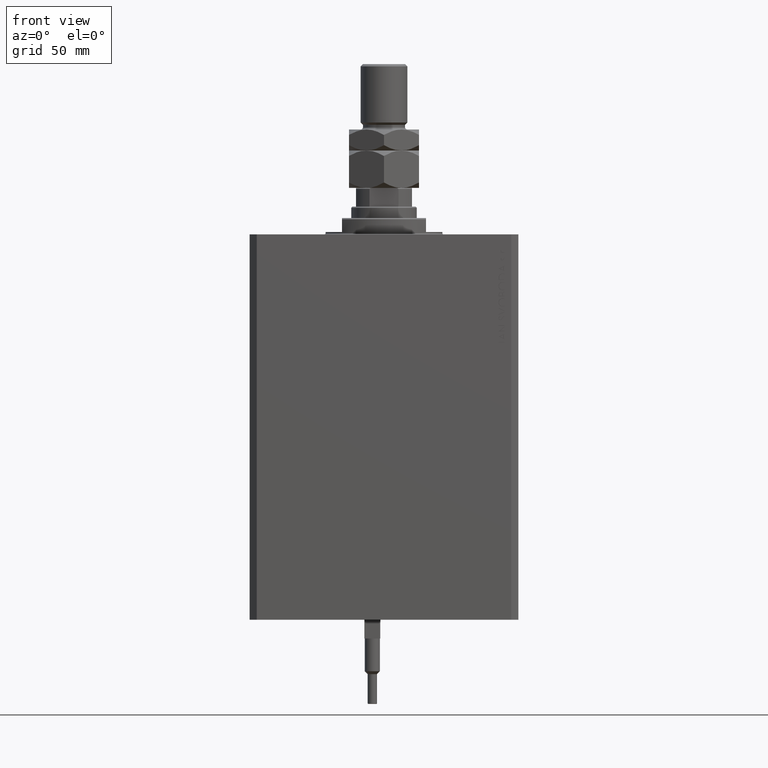
[diagram: clean part render]
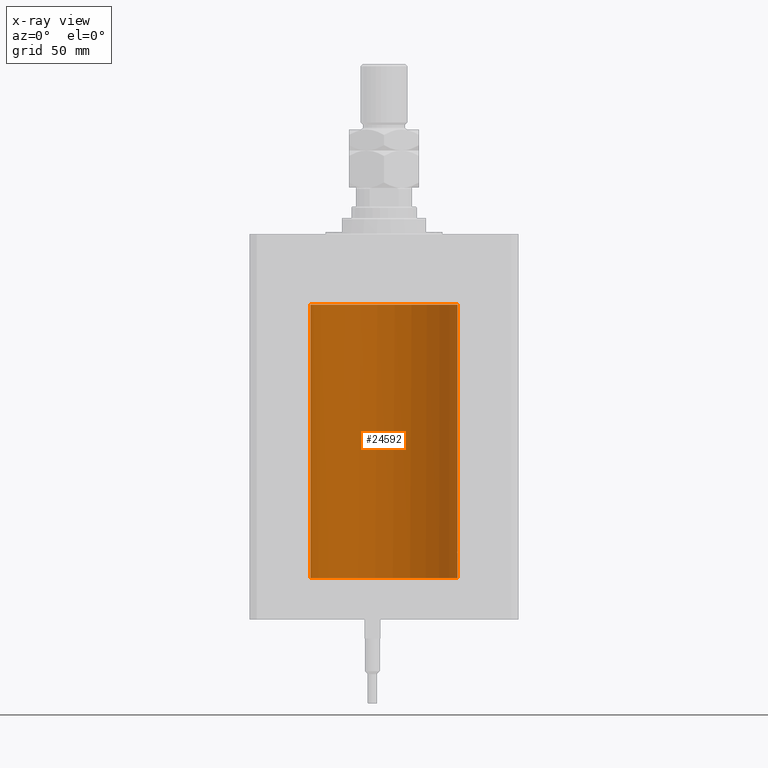
[diagram: x-ray — body ghosted, one internal face saturated and labeled with its STEP entity id]
A machine part, front view, then the same camera in x-ray: the body is ghosted and one INTERNAL B-rep face — a face not visible from any outside direction — is saturated and labeled: STEP entity #24592.
In plain terms, the highlighted cylindrical surface (partial cylindrical patch) has radius 31.5 mm, axis along (0, 0, 1).
Its self-contained STEP definition (entity closure, byte-faithful):
#439 = LINE ( 'NONE', #27268, #19842 ) ;
#714 = CARTESIAN_POINT ( 'NONE',  ( 31.45226167581968113, 1.735077252816690230, -134.9967648169954657 ) ) ;
#1642 = EDGE_CURVE ( 'NONE', #49293, #42877, #36315, .T. ) ;
#2627 = CARTESIAN_POINT ( 'NONE',  ( 31.47656968928225751, 1.219587704424718533, -137.5905023401450933 ) ) ;
#2875 = CARTESIAN_POINT ( 'NONE',  ( 31.49600115550921231, 0.5179422407981826293, -137.9361644646872378 ) ) ;
#3843 = DIRECTION ( 'NONE',  ( 0.000000000000000000, 0.000000000000000000, 1.000000000000000000 ) ) ;
#4048 = ORIENTED_EDGE ( 'NONE', *, *, #1642, .F. ) ;
#5146 = VERTEX_POINT ( 'NONE', #20584 ) ;
#6051 = DIRECTION ( 'NONE',  ( -0.000000000000000000, -0.000000000000000000, 1.000000000000000000 ) ) ;
#6418 = AXIS2_PLACEMENT_3D ( 'NONE', #23567, #20283, #46393 ) ;
#7515 = CARTESIAN_POINT ( 'NONE',  ( 31.45991621267056004, 1.590260824275577356, -134.7801457396745093 ) ) ;
#7879 = CARTESIAN_POINT ( 'NONE',  ( -31.48136522371477852, 1.092934591159441693, -30.68296962504550507 ) ) ;
#8247 = CARTESIAN_POINT ( 'NONE',  ( 31.44869941755756315, 1.797728078038221655, -135.1138051504310056 ) ) ;
#9733 = EDGE_CURVE ( 'NONE', #15061, #5146, #27938, .T. ) ;
#11143 = CARTESIAN_POINT ( 'NONE',  ( -31.49006417643538569, 0.8041893641746242771, -30.83852447520479956 ) ) ;
#11446 = AXIS2_PLACEMENT_3D ( 'NONE', #26159, #3843, #34677 ) ;
#11634 = CARTESIAN_POINT ( 'NONE',  ( -31.47622270810187928, 1.229689797707025578, -30.58584657277510388 ) ) ;
#11710 = CARTESIAN_POINT ( 'NONE',  ( -31.50000000000000000, 3.857637417314162689E-15, -147.1000000000000227 ) ) ;
#12167 = EDGE_CURVE ( 'NONE', #26007, #32769, #37341, .T. ) ;
#12247 = CARTESIAN_POINT ( 'NONE',  ( 31.47243113015943550, 1.320912165297383201, -134.4924797776056948 ) ) ;
#14298 = ORIENTED_EDGE ( 'NONE', *, *, #38606, .T. ) ;
#14625 = LINE ( 'NONE', #18627, #35944 ) ;
#14657 = CARTESIAN_POINT ( 'NONE',  ( 31.45161214644910075, 1.748160858796773631, -137.0059024499661291 ) ) ;
#14917 = CARTESIAN_POINT ( 'NONE',  ( 31.43644381923627051, 2.000000000000389910, -136.0000000000000000 ) ) ;
#15031 = CARTESIAN_POINT ( 'NONE',  ( 31.44280827872263018, 1.897980201673368450, -135.3559202626804563 ) ) ;
#15061 = VERTEX_POINT ( 'NONE', #27577 ) ;
#16524 = B_SPLINE_CURVE_WITH_KNOTS ( 'NONE', 3,
 ( #27049, #38839, #49406, #41873, #15031, #8247, #714, #7515, #46368, #12247, #30330, #26806, #27537, #38348, #19522, #34834, #38094, #22806 ),
 .UNSPECIFIED., .F., .F.,
 ( 4, 2, 2, 2, 2, 2, 2, 2, 4 ),
 ( 0.003127956870251400769, 0.003518772842989208692, 0.003909588815727015748, 0.004300404788464823672, 0.004691220761202631595, 0.005082036733940439518, 0.005472852706678247442, 0.005863668679416054498, 0.006254484652153862421 ),
 .UNSPECIFIED. ) ;
#18627 = CARTESIAN_POINT ( 'NONE',  ( 31.50000000000000000, 0.000000000000000000, -147.1000000000000227 ) ) ;
#19522 = CARTESIAN_POINT ( 'NONE',  ( 31.49597888575898708, 0.5193621964009151881, -134.0641961002934295 ) ) ;
#19842 = VECTOR ( 'NONE', #47075, 1000.000000000000000 ) ;
#20283 = DIRECTION ( 'NONE',  ( 0.000000000000000000, 0.000000000000000000, 1.000000000000000000 ) ) ;
#20584 = CARTESIAN_POINT ( 'NONE',  ( -31.50000000000000000, 3.857542963677526976E-15, -30.99999999999999645 ) ) ;
#21703 = CARTESIAN_POINT ( 'NONE',  ( 31.45992223434330981, 1.599182806012582558, -137.2291100714819265 ) ) ;
#21742 = CARTESIAN_POINT ( 'NONE',  ( 31.50000000000000000, -5.244345426788806144E-15, -138.0000000000000000 ) ) ;
#21947 = CARTESIAN_POINT ( 'NONE',  ( 31.43989559156923264, 1.947546710638696110, -136.5243738522823378 ) ) ;
#22806 = CARTESIAN_POINT ( 'NONE',  ( 31.50000000000000000, -8.369814204394935255E-24, -134.0000000000000000 ) ) ;
#23174 = CARTESIAN_POINT ( 'NONE',  ( -31.49373304996191791, 0.6483417414291828829, -30.89916737967284988 ) ) ;
#23251 = LINE ( 'NONE', #38540, #46199 ) ;
#23567 = CARTESIAN_POINT ( 'NONE',  ( 0.000000000000000000, 0.000000000000000000, -30.10000000000000142 ) ) ;
#23697 = DIRECTION ( 'NONE',  ( 1.000000000000000000, 0.000000000000000000, 0.000000000000000000 ) ) ;
#24592 = ADVANCED_FACE ( 'NONE', ( #39244 ), #46773, .F. ) ;
#24640 = CARTESIAN_POINT ( 'NONE',  ( 31.50000000000000000, -8.369814204394935255E-24, -134.0000000000000000 ) ) ;
#25056 = ORIENTED_EDGE ( 'NONE', *, *, #12167, .T. ) ;
#25698 = CARTESIAN_POINT ( 'NONE',  ( 31.49916827061299784, 0.2622045237009093532, -137.9870193222189130 ) ) ;
#25926 = CARTESIAN_POINT ( 'NONE',  ( -31.46054086632929625, 1.578847945691098875, -30.23891272917829909 ) ) ;
#25944 = CARTESIAN_POINT ( 'NONE',  ( 31.47236118406704364, 1.322499398534440429, -137.5059945699081823 ) ) ;
#26007 = VERTEX_POINT ( 'NONE', #21742 ) ;
#26159 = CARTESIAN_POINT ( 'NONE',  ( 0.000000000000000000, 0.000000000000000000, -147.1000000000000227 ) ) ;
#26431 = CARTESIAN_POINT ( 'NONE',  ( -31.46581137650060356, 1.472225318046969322, -30.36367113479343161 ) ) ;
#26806 = CARTESIAN_POINT ( 'NONE',  ( 31.48420706794360058, 1.003217712170305864, -134.2649149328429132 ) ) ;
#27049 = CARTESIAN_POINT ( 'NONE',  ( 31.43644381923627051, 2.000000000000389910, -136.0000000000000000 ) ) ;
#27056 = AXIS2_PLACEMENT_3D ( 'NONE', #39480, #6051, #23697 ) ;
#27268 = CARTESIAN_POINT ( 'NONE',  ( -31.50000000000000000, 3.857637417314162689E-15, -147.1000000000000227 ) ) ;
#27537 = CARTESIAN_POINT ( 'NONE',  ( 31.48776132734998967, 0.8863252928784803863, -134.2023288708493283 ) ) ;
#27577 = CARTESIAN_POINT ( 'NONE',  ( -31.45568311132346295, 1.670329308849017202, -30.10000000000000142 ) ) ;
#27938 = B_SPLINE_CURVE_WITH_KNOTS ( 'NONE', 3,
 ( #44990, #25926, #26431, #11634, #7879, #11143, #23174, #30450, #41235, #45243 ),
 .UNSPECIFIED., .F., .F.,
 ( 4, 2, 2, 2, 4 ),
 ( 0.000000000000000000, 0.0004921177670202515984, 0.0009842355340405031967, 0.001476353301060754795, 0.001968471068081006393 ),
 .UNSPECIFIED. ) ;
#28031 = CIRCLE ( 'NONE', #6418, 31.50000000000000000 ) ;
#28334 = ORIENTED_EDGE ( 'NONE', *, *, #9733, .T. ) ;
#28862 = ORIENTED_EDGE ( 'NONE', *, *, #31986, .F. ) ;
#29481 = EDGE_CURVE ( 'NONE', #49293, #26007, #23251, .T. ) ;
#29859 = CARTESIAN_POINT ( 'NONE',  ( 31.43644381923627051, 2.000000000000389910, -136.0000000000000000 ) ) ;
#30330 = CARTESIAN_POINT ( 'NONE',  ( 31.47656038302703507, 1.219789706799898843, -134.4096921557544988 ) ) ;
#30450 = CARTESIAN_POINT ( 'NONE',  ( -31.49869211956624682, 0.3285775292346077570, -30.97970213844783416 ) ) ;
#31552 = VERTEX_POINT ( 'NONE', #24640 ) ;
#31986 = EDGE_CURVE ( 'NONE', #42877, #5146, #439, .T. ) ;
#32167 = ORIENTED_EDGE ( 'NONE', *, *, #41838, .T. ) ;
#32769 = VERTEX_POINT ( 'NONE', #29859 ) ;
#34677 = DIRECTION ( 'NONE',  ( 1.000000000000000000, 0.000000000000000000, 0.000000000000000000 ) ) ;
#34834 = CARTESIAN_POINT ( 'NONE',  ( 31.49916210907646175, 0.2630769646869162703, -134.0130766648357508 ) ) ;
#35944 = VECTOR ( 'NONE', #49504, 1000.000000000000000 ) ;
#36315 = CIRCLE ( 'NONE', #11446, 31.50000000000000000 ) ;
#37091 = VERTEX_POINT ( 'NONE', #48952 ) ;
#37236 = CARTESIAN_POINT ( 'NONE',  ( 31.50000000000000000, -5.244345426788806144E-15, -138.0000000000000000 ) ) ;
#37341 = B_SPLINE_CURVE_WITH_KNOTS ( 'NONE', 3,
 ( #37236, #48280, #25698, #2875, #41507, #41007, #45258, #2627, #25944, #21703, #14657, #21947, #37484, #14917 ),
 .UNSPECIFIED., .F., .F.,
 ( 4, 2, 2, 2, 2, 2, 4 ),
 ( 5.096331421419789159E-18, 0.0003909946087814292703, 0.0007819892175628534448, 0.001172983826344277999, 0.001563978435125702553, 0.002345967652688551661, 0.003127956870251400769 ),
 .UNSPECIFIED. ) ;
#37484 = CARTESIAN_POINT ( 'NONE',  ( 31.43644381923627762, 2.000000000000387246, -136.2610318865086185 ) ) ;
#37984 = EDGE_CURVE ( 'NONE', #37091, #15061, #28031, .T. ) ;
#38094 = CARTESIAN_POINT ( 'NONE',  ( 31.50000000000000711, 0.1305169792915967519, -133.9999999999999432 ) ) ;
#38348 = CARTESIAN_POINT ( 'NONE',  ( 31.49364883223205425, 0.6440257487116654023, -134.1019945078124351 ) ) ;
#38540 = CARTESIAN_POINT ( 'NONE',  ( 31.50000000000000000, 0.000000000000000000, -147.1000000000000227 ) ) ;
#38606 = EDGE_CURVE ( 'NONE', #31552, #37091, #14625, .T. ) ;
#38839 = CARTESIAN_POINT ( 'NONE',  ( 31.43644381923627051, 2.000000000000391687, -135.8695436863447412 ) ) ;
#39244 = FACE_OUTER_BOUND ( 'NONE', #44199, .T. ) ;
#39480 = CARTESIAN_POINT ( 'NONE',  ( 0.000000000000000000, 0.000000000000000000, -147.1000000000000227 ) ) ;
#41007 = CARTESIAN_POINT ( 'NONE',  ( 31.48773468680478160, 0.8872681233992232297, -137.7972062396702313 ) ) ;
#41235 = CARTESIAN_POINT ( 'NONE',  ( -31.50000000000000000, 0.1657740143102494623, -31.00000000000000711 ) ) ;
#41507 = CARTESIAN_POINT ( 'NONE',  ( 31.49362851683618914, 0.6450141649083286355, -137.8976700761137124 ) ) ;
#41838 = EDGE_CURVE ( 'NONE', #32769, #31552, #16524, .T. ) ;
#41873 = CARTESIAN_POINT ( 'NONE',  ( 31.44047330683569186, 1.935793094480593224, -135.4805747813048526 ) ) ;
#42877 = VERTEX_POINT ( 'NONE', #11710 ) ;
#44199 = EDGE_LOOP ( 'NONE', ( #28862, #4048, #48950, #25056, #32167, #14298, #45886, #28334 ) ) ;
#44990 = CARTESIAN_POINT ( 'NONE',  ( -31.45568311132346295, 1.670329308849017202, -30.10000000000000142 ) ) ;
#45243 = CARTESIAN_POINT ( 'NONE',  ( -31.50000000000000000, 3.857542963677526976E-15, -30.99999999999999645 ) ) ;
#45258 = CARTESIAN_POINT ( 'NONE',  ( 31.48424227690099642, 1.002158581476550347, -137.7357332860677843 ) ) ;
#45886 = ORIENTED_EDGE ( 'NONE', *, *, #37984, .T. ) ;
#45999 = CARTESIAN_POINT ( 'NONE',  ( 31.50000000000000000, 0.000000000000000000, -147.1000000000000227 ) ) ;
#46199 = VECTOR ( 'NONE', #46309, 1000.000000000000000 ) ;
#46309 = DIRECTION ( 'NONE',  ( -0.000000000000000000, -0.000000000000000000, 1.000000000000000000 ) ) ;
#46368 = CARTESIAN_POINT ( 'NONE',  ( 31.46404119587053927, 1.507594711990238201, -134.6791728524376310 ) ) ;
#46393 = DIRECTION ( 'NONE',  ( 1.000000000000000000, 0.000000000000000000, 0.000000000000000000 ) ) ;
#46773 = CYLINDRICAL_SURFACE ( 'NONE', #27056, 31.50000000000000000 ) ;
#47075 = DIRECTION ( 'NONE',  ( -0.000000000000000000, -0.000000000000000000, 1.000000000000000000 ) ) ;
#48280 = CARTESIAN_POINT ( 'NONE',  ( 31.50000000000000711, 0.1322106156816646172, -138.0000000000000568 ) ) ;
#48950 = ORIENTED_EDGE ( 'NONE', *, *, #29481, .T. ) ;
#48952 = CARTESIAN_POINT ( 'NONE',  ( 31.50000000000000000, 0.000000000000000000, -30.10000000000000142 ) ) ;
#49293 = VERTEX_POINT ( 'NONE', #45999 ) ;
#49406 = CARTESIAN_POINT ( 'NONE',  ( 31.43728213781475489, 1.986944500966170146, -135.7370380017273135 ) ) ;
#49504 = DIRECTION ( 'NONE',  ( -0.000000000000000000, -0.000000000000000000, 1.000000000000000000 ) ) ;